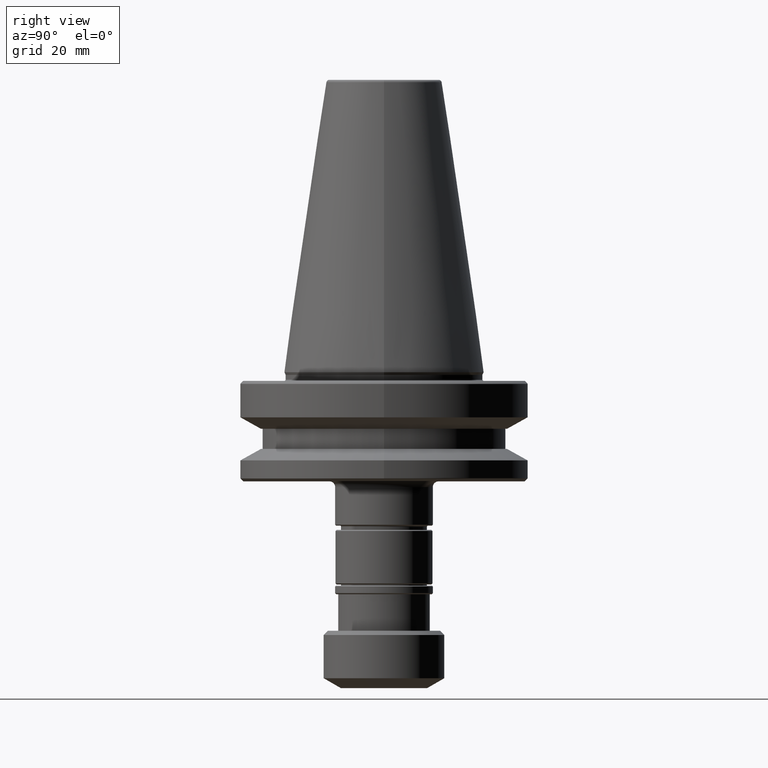
[diagram: clean part render]
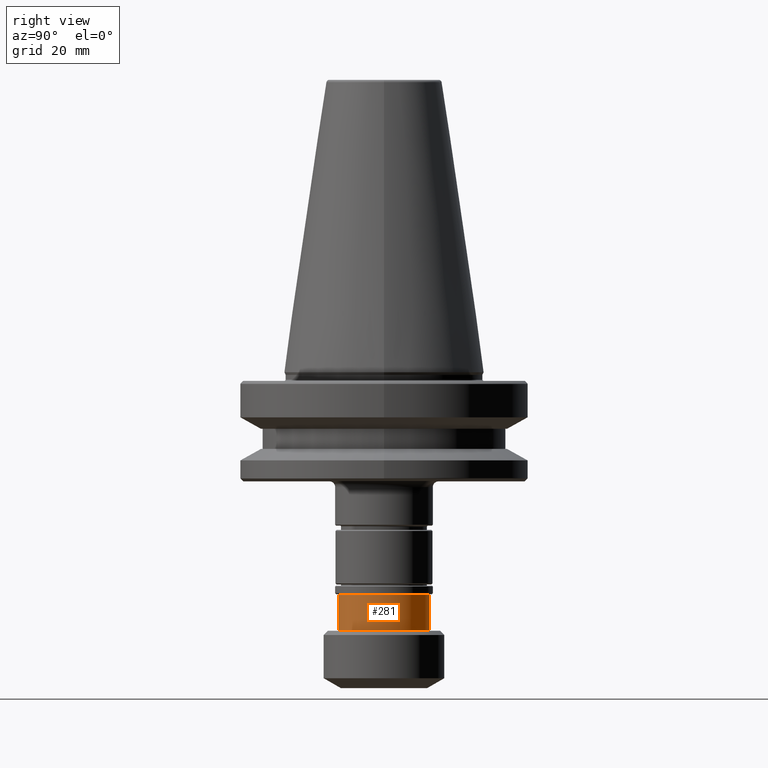
[diagram: same view with one face highlighted and labeled with its STEP entity id]
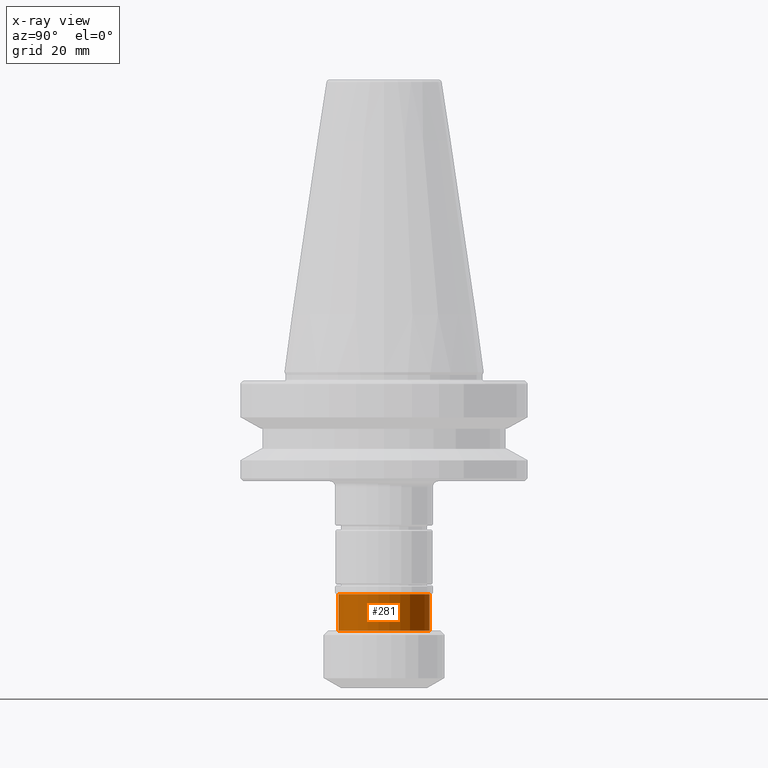
[diagram: x-ray of the same camera — body ghosted, the highlighted face saturated]
A machine part, right view. The second image highlights one B-rep face of the part: STEP entity #281.
The next image is the same camera in x-ray: the body ghosted, the highlighted face saturated — about 0% of this face is hidden behind the body in this view.
In plain terms, the highlighted cylindrical surface (partial cylindrical patch) has radius 15.95 mm, axis along (-0, 0, 1).
Its self-contained STEP definition (entity closure, byte-faithful):
#21 = CARTESIAN_POINT ( 'NONE',  ( 0.0000000000000000000, -15.94999999999492600, -38.00000000000110100 ) ) ;
#74 = VERTEX_POINT ( 'NONE', #1946 ) ;
#82 = EDGE_CURVE ( 'NONE', #1020, #1831, #1423, .T. ) ;
#247 = EDGE_LOOP ( 'NONE', ( #1571, #354, #1802, #1844 ) ) ;
#281 = ADVANCED_FACE ( 'NONE', ( #822 ), #1231, .T. ) ;
#354 = ORIENTED_EDGE ( 'NONE', *, *, #1078, .T. ) ;
#461 = DIRECTION ( 'NONE',  ( 0.0000000000000000000, -1.000000000000000000, 2.610242220906368000E-015 ) ) ;
#491 = AXIS2_PLACEMENT_3D ( 'NONE', #1929, #1777, #461 ) ;
#508 = DIRECTION ( 'NONE',  ( -0.0000000000000000000, 2.698458740408409400E-015, 1.000000000000000000 ) ) ;
#521 = CIRCLE ( 'NONE', #1910, 15.94999999999491200 ) ;
#589 = DIRECTION ( 'NONE',  ( -0.0000000000000000000, 2.698458740408409400E-015, 1.000000000000000000 ) ) ;
#605 = VECTOR ( 'NONE', #1744, 1000.000000000000000 ) ;
#618 = LINE ( 'NONE', #681, #605 ) ;
#681 = CARTESIAN_POINT ( 'NONE',  ( 1.953311644639406800E-015, 15.94999999999492600, -38.00000000000118700 ) ) ;
#822 = FACE_OUTER_BOUND ( 'NONE', #247, .T. ) ;
#852 = DIRECTION ( 'NONE',  ( 0.0000000000000000000, -1.000000000000000000, 2.610242220906370800E-015 ) ) ;
#896 = DIRECTION ( 'NONE',  ( 0.0000000000000000000, -1.000000000000000000, 2.610242220906373200E-015 ) ) ;
#947 = CIRCLE ( 'NONE', #491, 15.94999999999494400 ) ;
#1020 = VERTEX_POINT ( 'NONE', #1167 ) ;
#1078 = EDGE_CURVE ( 'NONE', #74, #1747, #618, .T. ) ;
#1167 = CARTESIAN_POINT ( 'NONE',  ( 0.0000000000000000000, -15.94999999999508200, -89.99999999999991500 ) ) ;
#1192 = AXIS2_PLACEMENT_3D ( 'NONE', #1447, #589, #852 ) ;
#1231 = CYLINDRICAL_SURFACE ( 'NONE', #1192, 15.94999999999492600 ) ;
#1332 = CARTESIAN_POINT ( 'NONE',  ( 0.0000000000000000000, -15.94999999999502000, -77.29999999999451200 ) ) ;
#1421 = VECTOR ( 'NONE', #508, 1000.000000000000000 ) ;
#1423 = LINE ( 'NONE', #21, #1421 ) ;
#1447 = CARTESIAN_POINT ( 'NONE',  ( 0.0000000000000000000, 0.0000000000000000000, -38.00000000000114400 ) ) ;
#1571 = ORIENTED_EDGE ( 'NONE', *, *, #1666, .T. ) ;
#1666 = EDGE_CURVE ( 'NONE', #1020, #74, #947, .T. ) ;
#1671 = CARTESIAN_POINT ( 'NONE',  ( 0.0000000000000000000, -1.060494284980327100E-013, -77.29999999999455400 ) ) ;
#1744 = DIRECTION ( 'NONE',  ( -0.0000000000000000000, 2.698458740408409400E-015, 1.000000000000000000 ) ) ;
#1747 = VERTEX_POINT ( 'NONE', #2002 ) ;
#1777 = DIRECTION ( 'NONE',  ( -0.0000000000000000000, 2.698458740408409400E-015, 1.000000000000000000 ) ) ;
#1802 = ORIENTED_EDGE ( 'NONE', *, *, #1988, .F. ) ;
#1831 = VERTEX_POINT ( 'NONE', #1332 ) ;
#1844 = ORIENTED_EDGE ( 'NONE', *, *, #82, .F. ) ;
#1910 = AXIS2_PLACEMENT_3D ( 'NONE', #1671, #2006, #896 ) ;
#1929 = CARTESIAN_POINT ( 'NONE',  ( 0.0000000000000000000, -1.403198545012340800E-013, -89.99999999999995700 ) ) ;
#1946 = CARTESIAN_POINT ( 'NONE',  ( 1.953311644639408000E-015, 15.94999999999480500, -90.00000000000000000 ) ) ;
#1988 = EDGE_CURVE ( 'NONE', #1831, #1747, #521, .T. ) ;
#2002 = CARTESIAN_POINT ( 'NONE',  ( 1.953311644639408000E-015, 15.94999999999480500, -77.29999999999459700 ) ) ;
#2006 = DIRECTION ( 'NONE',  ( -0.0000000000000000000, 2.698458740408409400E-015, 1.000000000000000000 ) ) ;